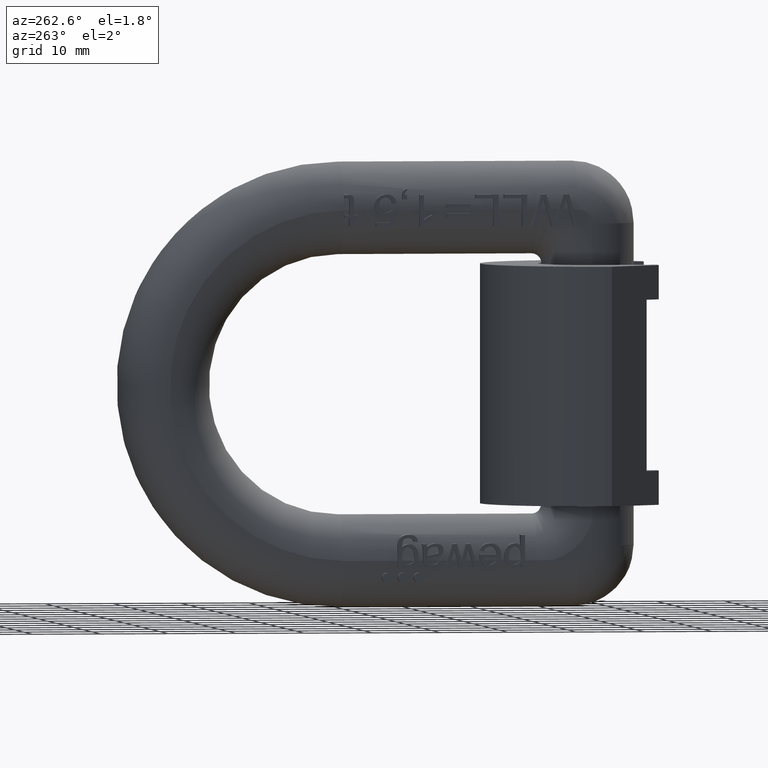
[diagram: clean part render]
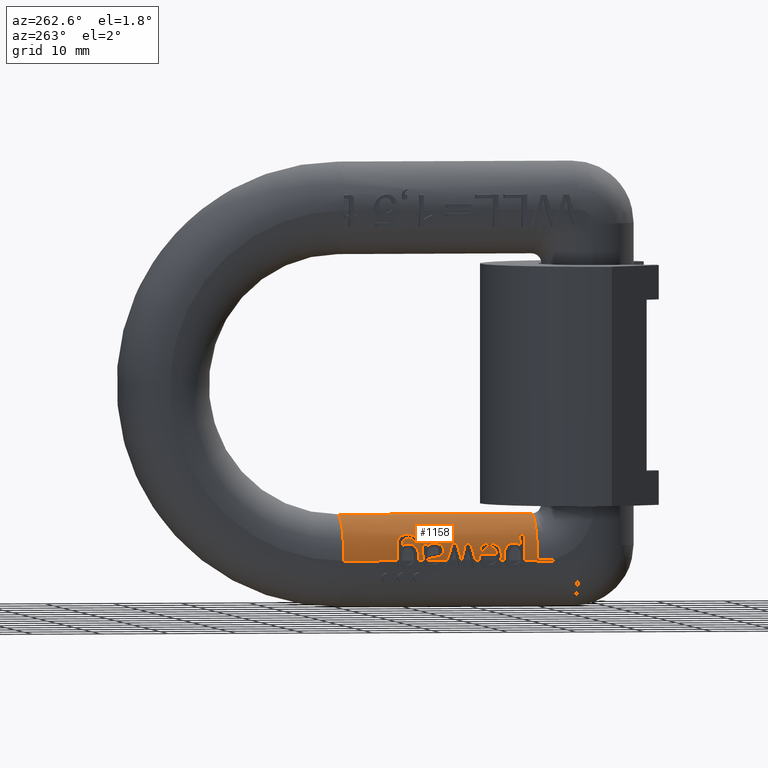
[diagram: same view with one face highlighted and labeled with its STEP entity id]
A machine part, auxiliary view. The second image highlights one B-rep face of the part: STEP entity #1158.
In plain terms, the highlighted cylindrical surface (partial cylindrical patch) has radius 6.9 mm, axis along (0, -1, 0).
Its self-contained STEP definition (entity closure, byte-faithful):
#266=ELLIPSE('',#9014,48.0158456161202,6.9);
#267=ELLIPSE('',#9015,51.9098161027808,6.9);
#268=ELLIPSE('',#9016,7.24041539934658,6.9);
#269=ELLIPSE('',#9017,7.14703583906104,6.9);
#270=ELLIPSE('',#9018,7.083587877245,6.9);
#271=ELLIPSE('',#9019,7.14294426054788,6.9);
#272=ELLIPSE('',#9020,7.22701863492407,6.9);
#273=ELLIPSE('',#9021,57.5025199382336,6.9);
#373=B_SPLINE_CURVE_WITH_KNOTS('',3,(#12194,#12195,#12196,#12197,#12198,
#12199,#12200,#12201),.UNSPECIFIED.,.F.,.F.,(4,2,2,4),(0.,0.249999999999999,
0.499999999999999,1.),.UNSPECIFIED.);
#374=B_SPLINE_CURVE_WITH_KNOTS('',3,(#12203,#12204,#12205,#12206,#12207,
#12208,#12209,#12210,#12211,#12212,#12213,#12214,#12215),.UNSPECIFIED.,
 .F.,.F.,(4,3,3,3,4),(0.,0.240774955562718,0.479091554389668,0.754813420386059,
1.),.UNSPECIFIED.);
#375=B_SPLINE_CURVE_WITH_KNOTS('',3,(#12217,#12218,#12219,#12220,#12221,
#12222,#12223,#12224,#12225,#12226),.UNSPECIFIED.,.F.,.F.,(4,3,3,4),(0.,
0.414423396238004,0.649284728910079,1.),.UNSPECIFIED.);
#376=B_SPLINE_CURVE_WITH_KNOTS('',3,(#12230,#12231,#12232,#12233,#12234,
#12235,#12236,#12237,#12238,#12239),.UNSPECIFIED.,.F.,.F.,(4,3,3,4),(0.,
0.265655216412921,0.672024980526453,1.),.UNSPECIFIED.);
#377=B_SPLINE_CURVE_WITH_KNOTS('',3,(#12241,#12242,#12243,#12244,#12245,
#12246,#12247,#12248,#12249,#12250,#12251,#12252,#12253,#12254,#12255,#12256,
#12257,#12258,#12259),.UNSPECIFIED.,.F.,.F.,(4,3,3,3,3,3,4),(0.,0.204909507472802,
0.339278695809492,0.474389882199312,0.678484330733748,0.856270146803092,
1.),.UNSPECIFIED.);
#378=B_SPLINE_CURVE_WITH_KNOTS('',3,(#12261,#12262,#12263,#12264,#12265,
#12266,#12267,#12268,#12269,#12270),.UNSPECIFIED.,.F.,.F.,(4,3,3,4),(0.,
0.350423326157689,0.673957232872882,1.),.UNSPECIFIED.);
#379=B_SPLINE_CURVE_WITH_KNOTS('',3,(#12272,#12273,#12274,#12275,#12276,
#12277,#12278,#12279,#12280,#12281,#12282,#12283,#12284,#12285,#12286,#12287,
#12288,#12289,#12290,#12291,#12292,#12293,#12294,#12295,#12296,#12297,#12298,
#12299),.UNSPECIFIED.,.F.,.F.,(4,3,3,3,3,3,3,3,3,4),(0.,0.161555110936717,
0.32659108141942,0.490029057805901,0.585040143930218,0.680259675914433,
0.774914289945667,0.860988711071178,0.946998001945225,1.),.UNSPECIFIED.);
#380=B_SPLINE_CURVE_WITH_KNOTS('',3,(#12300,#12301,#12302,#12303,#12304,
#12305,#12306,#12307,#12308,#12309),.UNSPECIFIED.,.F.,.F.,(4,3,3,4),(0.,
0.380802208752943,0.689054274983316,1.),.UNSPECIFIED.);
#381=B_SPLINE_CURVE_WITH_KNOTS('',3,(#12311,#12312,#12313,#12314,#12315,
#12316,#12317,#12318,#12319,#12320),.UNSPECIFIED.,.F.,.F.,(4,3,3,4),(0.,
0.493933314909418,0.746039258606021,1.),.UNSPECIFIED.);
#382=B_SPLINE_CURVE_WITH_KNOTS('',3,(#12324,#12325,#12326,#12327,#12328,
#12329,#12330,#12331,#12332,#12333),.UNSPECIFIED.,.F.,.F.,(4,3,3,4),(0.,
0.493370917964007,0.745461342687031,1.),.UNSPECIFIED.);
#383=B_SPLINE_CURVE_WITH_KNOTS('',3,(#12335,#12336,#12337,#12338,#12339,
#12340,#12341,#12342,#12343,#12344),.UNSPECIFIED.,.F.,.F.,(4,3,3,4),(0.,
0.282583026587272,0.564671553526574,1.),.UNSPECIFIED.);
#384=B_SPLINE_CURVE_WITH_KNOTS('',3,(#12346,#12347,#12348,#12349,#12350,
#12351,#12352,#12353,#12354,#12355,#12356,#12357,#12358,#12359,#12360,#12361,
#12362,#12363,#12364,#12365,#12366,#12367,#12368,#12369,#12370),
 .UNSPECIFIED.,.F.,.F.,(4,3,3,3,3,3,3,3,4),(0.,0.109334912724333,0.217830452497316,
0.344744115261239,0.457062185518119,0.572257754798188,0.721654213663783,
0.937888591037232,1.),.UNSPECIFIED.);
#385=B_SPLINE_CURVE_WITH_KNOTS('',3,(#12372,#12373,#12374,#12375,#12376,
#12377,#12378,#12379,#12380,#12381),.UNSPECIFIED.,.F.,.F.,(4,3,3,4),(0.,
0.259528139793295,0.519063539176798,1.),.UNSPECIFIED.);
#386=B_SPLINE_CURVE_WITH_KNOTS('',3,(#12383,#12384,#12385,#12386,#12387,
#12388,#12389,#12390,#12391,#12392),.UNSPECIFIED.,.F.,.F.,(4,3,3,4),(0.,
0.26165614086771,0.523384175272637,1.),.UNSPECIFIED.);
#387=B_SPLINE_CURVE_WITH_KNOTS('',3,(#12394,#12395,#12396,#12397,#12398,
#12399,#12400,#12401,#12402,#12403),.UNSPECIFIED.,.F.,.F.,(4,3,3,4),(0.,
0.331270383050767,0.665203033046445,1.),.UNSPECIFIED.);
#388=B_SPLINE_CURVE_WITH_KNOTS('',3,(#12405,#12406,#12407,#12408,#12409,
#12410,#12411,#12412,#12413,#12414),.UNSPECIFIED.,.F.,.F.,(4,3,3,4),(0.,
0.336070513602499,0.667700301170696,1.),.UNSPECIFIED.);
#389=B_SPLINE_CURVE_WITH_KNOTS('',3,(#12416,#12417,#12418,#12419,#12420,
#12421,#12422),.UNSPECIFIED.,.F.,.F.,(4,3,4),(0.,0.498341515942701,1.),
 .UNSPECIFIED.);
#390=B_SPLINE_CURVE_WITH_KNOTS('',3,(#12423,#12424,#12425,#12426),
 .UNSPECIFIED.,.F.,.F.,(4,4),(0.,1.),.UNSPECIFIED.);
#391=B_SPLINE_CURVE_WITH_KNOTS('',3,(#12430,#12431,#12432,#12433),
 .UNSPECIFIED.,.F.,.F.,(4,4),(0.,1.),.UNSPECIFIED.);
#392=B_SPLINE_CURVE_WITH_KNOTS('',3,(#12449,#12450,#12451,#12452,#12453,
#12454,#12455),.UNSPECIFIED.,.F.,.F.,(4,3,4),(0.,0.814441252914078,1.),
 .UNSPECIFIED.);
#393=B_SPLINE_CURVE_WITH_KNOTS('',3,(#12459,#12460,#12461,#12462,#12463,
#12464,#12465,#12466,#12467,#12468),.UNSPECIFIED.,.F.,.F.,(4,3,3,4),(0.,
0.295914027655166,0.754996035532997,1.),.UNSPECIFIED.);
#394=B_SPLINE_CURVE_WITH_KNOTS('',3,(#12470,#12471,#12472,#12473,#12474,
#12475,#12476,#12477,#12478,#12479,#12480,#12481,#12482,#12483,#12484,#12485),
 .UNSPECIFIED.,.F.,.F.,(4,3,3,3,3,4),(0.,0.208494010149192,0.415658259112177,
0.65101251760599,0.899385049135536,1.),.UNSPECIFIED.);
#395=B_SPLINE_CURVE_WITH_KNOTS('',3,(#12487,#12488,#12489,#12490,#12491,
#12492,#12493,#12494,#12495,#12496),.UNSPECIFIED.,.F.,.F.,(4,3,3,4),(0.,
0.290391091340213,0.581357320391749,1.),.UNSPECIFIED.);
#396=B_SPLINE_CURVE_WITH_KNOTS('',3,(#12500,#12501,#12502,#12503,#12504,
#12505,#12506,#12507,#12508,#12509),.UNSPECIFIED.,.F.,.F.,(4,3,3,4),(0.,
0.265914615217039,0.758350119690938,1.),.UNSPECIFIED.);
#397=B_SPLINE_CURVE_WITH_KNOTS('',3,(#12511,#12512,#12513,#12514,#12515,
#12516,#12517,#12518,#12519,#12520,#12521,#12522,#12523,#12524,#12525,#12526),
 .UNSPECIFIED.,.F.,.F.,(4,3,3,3,3,4),(0.,0.207142719932074,0.414106459647107,
0.701317802841798,0.902711883125082,1.),.UNSPECIFIED.);
#398=B_SPLINE_CURVE_WITH_KNOTS('',3,(#12528,#12529,#12530,#12531,#12532,
#12533,#12534,#12535,#12536,#12537,#12538,#12539,#12540),.UNSPECIFIED.,
 .F.,.F.,(4,3,3,3,4),(0.,0.327583363499491,0.659416952884937,0.903455095412193,
1.),.UNSPECIFIED.);
#399=B_SPLINE_CURVE_WITH_KNOTS('',3,(#12541,#12542,#12543,#12544,#12545,
#12546,#12547,#12548,#12549,#12550,#12551,#12552,#12553,#12554,#12555,#12556),
 .UNSPECIFIED.,.F.,.F.,(4,3,3,3,3,4),(0.,0.19221115347812,0.382927396830199,
0.666963421150526,0.956716028113853,1.),.UNSPECIFIED.);
#400=B_SPLINE_CURVE_WITH_KNOTS('',3,(#12558,#12559,#12560,#12561,#12562,
#12563,#12564,#12565,#12566,#12567,#12568,#12569,#12570),.UNSPECIFIED.,
 .F.,.F.,(4,3,3,3,4),(0.,0.268648668352517,0.534872777494387,0.839503930025229,
1.),.UNSPECIFIED.);
#401=B_SPLINE_CURVE_WITH_KNOTS('',3,(#12572,#12573,#12574,#12575,#12576,
#12577,#12578,#12579,#12580,#12581),.UNSPECIFIED.,.F.,.F.,(4,3,3,4),(0.,
0.25865518262096,0.517282552273823,1.),.UNSPECIFIED.);
#1074=CYLINDRICAL_SURFACE('',#9023,6.9);
#1158=ADVANCED_FACE('',(#1864),#1074,.T.);
#1864=FACE_OUTER_BOUND('',#2323,.T.);
#2323=EDGE_LOOP('',(#3215,#3216,#3217,#3218,#3219,#3220,#3221,#3222,#3223,
#3224,#3225,#3226,#3227,#3228,#3229,#3230,#3231,#3232,#3233,#3234,#3235,
#3236,#3237,#3238,#3239,#3240,#3241,#3242,#3243,#3244,#3245,#3246,#3247,
#3248,#3249,#3250,#3251,#3252,#3253,#3254,#3255,#3256,#3257,#3258,#3259,
#3260,#3261,#3262,#3263,#3264,#3265,#3266,#3267,#3268,#3269));
#2812=CIRCLE('',#9011,6.9);
#2813=CIRCLE('',#9012,6.9);
#2814=CIRCLE('',#9013,6.9);
#2815=CIRCLE('',#9022,6.9);
#3215=ORIENTED_EDGE('',*,*,#6604,.F.);
#3216=ORIENTED_EDGE('',*,*,#6592,.F.);
#3217=ORIENTED_EDGE('',*,*,#6605,.F.);
#3218=ORIENTED_EDGE('',*,*,#6441,.F.);
#3219=ORIENTED_EDGE('',*,*,#6606,.T.);
#3220=ORIENTED_EDGE('',*,*,#6587,.F.);
#3221=ORIENTED_EDGE('',*,*,#6607,.F.);
#3222=ORIENTED_EDGE('',*,*,#6608,.F.);
#3223=ORIENTED_EDGE('',*,*,#6609,.F.);
#3224=ORIENTED_EDGE('',*,*,#6610,.F.);
#3225=ORIENTED_EDGE('',*,*,#6611,.F.);
#3226=ORIENTED_EDGE('',*,*,#6612,.F.);
#3227=ORIENTED_EDGE('',*,*,#6613,.F.);
#3228=ORIENTED_EDGE('',*,*,#6614,.F.);
#3229=ORIENTED_EDGE('',*,*,#6581,.F.);
#3230=ORIENTED_EDGE('',*,*,#6615,.F.);
#3231=ORIENTED_EDGE('',*,*,#6616,.F.);
#3232=ORIENTED_EDGE('',*,*,#6617,.F.);
#3233=ORIENTED_EDGE('',*,*,#6618,.F.);
#3234=ORIENTED_EDGE('',*,*,#6619,.F.);
#3235=ORIENTED_EDGE('',*,*,#6620,.F.);
#3236=ORIENTED_EDGE('',*,*,#6621,.F.);
#3237=ORIENTED_EDGE('',*,*,#6622,.F.);
#3238=ORIENTED_EDGE('',*,*,#6623,.F.);
#3239=ORIENTED_EDGE('',*,*,#6624,.F.);
#3240=ORIENTED_EDGE('',*,*,#6625,.F.);
#3241=ORIENTED_EDGE('',*,*,#6603,.F.);
#3242=ORIENTED_EDGE('',*,*,#6626,.F.);
#3243=ORIENTED_EDGE('',*,*,#6627,.F.);
#3244=ORIENTED_EDGE('',*,*,#6628,.F.);
#3245=ORIENTED_EDGE('',*,*,#6574,.F.);
#3246=ORIENTED_EDGE('',*,*,#6629,.F.);
#3247=ORIENTED_EDGE('',*,*,#6630,.F.);
#3248=ORIENTED_EDGE('',*,*,#6631,.F.);
#3249=ORIENTED_EDGE('',*,*,#6632,.F.);
#3250=ORIENTED_EDGE('',*,*,#6633,.F.);
#3251=ORIENTED_EDGE('',*,*,#6634,.F.);
#3252=ORIENTED_EDGE('',*,*,#6635,.F.);
#3253=ORIENTED_EDGE('',*,*,#6636,.F.);
#3254=ORIENTED_EDGE('',*,*,#6562,.F.);
#3255=ORIENTED_EDGE('',*,*,#6637,.F.);
#3256=ORIENTED_EDGE('',*,*,#6638,.F.);
#3257=ORIENTED_EDGE('',*,*,#6639,.F.);
#3258=ORIENTED_EDGE('',*,*,#6640,.F.);
#3259=ORIENTED_EDGE('',*,*,#6641,.F.);
#3260=ORIENTED_EDGE('',*,*,#6642,.F.);
#3261=ORIENTED_EDGE('',*,*,#6643,.F.);
#3262=ORIENTED_EDGE('',*,*,#6644,.F.);
#3263=ORIENTED_EDGE('',*,*,#6645,.F.);
#3264=ORIENTED_EDGE('',*,*,#6560,.F.);
#3265=ORIENTED_EDGE('',*,*,#6646,.F.);
#3266=ORIENTED_EDGE('',*,*,#6647,.F.);
#3267=ORIENTED_EDGE('',*,*,#6648,.F.);
#3268=ORIENTED_EDGE('',*,*,#6649,.F.);
#3269=ORIENTED_EDGE('',*,*,#6650,.F.);
#5557=VERTEX_POINT('',#11249);
#5561=VERTEX_POINT('',#11268);
#5656=VERTEX_POINT('',#11800);
#5661=VERTEX_POINT('',#11837);
#5662=VERTEX_POINT('',#11839);
#5663=VERTEX_POINT('',#11865);
#5664=VERTEX_POINT('',#11867);
#5675=VERTEX_POINT('',#11895);
#5676=VERTEX_POINT('',#11897);
#5682=VERTEX_POINT('',#11957);
#5683=VERTEX_POINT('',#11959);
#5688=VERTEX_POINT('',#11993);
#5689=VERTEX_POINT('',#11995);
#5692=VERTEX_POINT('',#12002);
#5700=VERTEX_POINT('',#12167);
#5701=VERTEX_POINT('',#12187);
#5702=VERTEX_POINT('',#12191);
#5703=VERTEX_POINT('',#12202);
#5704=VERTEX_POINT('',#12216);
#5705=VERTEX_POINT('',#12227);
#5706=VERTEX_POINT('',#12229);
#5707=VERTEX_POINT('',#12240);
#5708=VERTEX_POINT('',#12260);
#5709=VERTEX_POINT('',#12271);
#5710=VERTEX_POINT('',#12310);
#5711=VERTEX_POINT('',#12321);
#5712=VERTEX_POINT('',#12323);
#5713=VERTEX_POINT('',#12334);
#5714=VERTEX_POINT('',#12345);
#5715=VERTEX_POINT('',#12371);
#5716=VERTEX_POINT('',#12382);
#5717=VERTEX_POINT('',#12393);
#5718=VERTEX_POINT('',#12404);
#5719=VERTEX_POINT('',#12415);
#5720=VERTEX_POINT('',#12427);
#5721=VERTEX_POINT('',#12429);
#5722=VERTEX_POINT('',#12435);
#5723=VERTEX_POINT('',#12437);
#5724=VERTEX_POINT('',#12439);
#5725=VERTEX_POINT('',#12441);
#5726=VERTEX_POINT('',#12443);
#5727=VERTEX_POINT('',#12445);
#5728=VERTEX_POINT('',#12447);
#5729=VERTEX_POINT('',#12456);
#5730=VERTEX_POINT('',#12458);
#5731=VERTEX_POINT('',#12469);
#5732=VERTEX_POINT('',#12486);
#5733=VERTEX_POINT('',#12497);
#5734=VERTEX_POINT('',#12499);
#5735=VERTEX_POINT('',#12510);
#5736=VERTEX_POINT('',#12527);
#5737=VERTEX_POINT('',#12557);
#5738=VERTEX_POINT('',#12571);
#5739=VERTEX_POINT('',#12582);
#5740=VERTEX_POINT('',#12584);
#6441=EDGE_CURVE('',#5561,#5557,#7735,.T.);
#6560=EDGE_CURVE('',#5661,#5662,#7778,.T.);
#6562=EDGE_CURVE('',#5663,#5664,#7779,.T.);
#6574=EDGE_CURVE('',#5675,#5676,#7785,.T.);
#6581=EDGE_CURVE('',#5682,#5683,#7786,.T.);
#6587=EDGE_CURVE('',#5688,#5689,#7788,.T.);
#6592=EDGE_CURVE('',#5692,#5656,#7791,.T.);
#6603=EDGE_CURVE('',#5701,#5700,#7792,.T.);
#6604=EDGE_CURVE('',#5656,#5702,#2812,.T.);
#6605=EDGE_CURVE('',#5557,#5692,#2813,.T.);
#6606=EDGE_CURVE('',#5561,#5689,#2814,.T.);
#6607=EDGE_CURVE('',#5703,#5688,#373,.T.);
#6608=EDGE_CURVE('',#5704,#5703,#374,.T.);
#6609=EDGE_CURVE('',#5705,#5704,#375,.T.);
#6610=EDGE_CURVE('',#5706,#5705,#266,.T.);
#6611=EDGE_CURVE('',#5707,#5706,#376,.T.);
#6612=EDGE_CURVE('',#5708,#5707,#377,.T.);
#6613=EDGE_CURVE('',#5709,#5708,#378,.T.);
#6614=EDGE_CURVE('',#5683,#5709,#379,.T.);
#6615=EDGE_CURVE('',#5710,#5682,#380,.T.);
#6616=EDGE_CURVE('',#5711,#5710,#381,.T.);
#6617=EDGE_CURVE('',#5712,#5711,#7793,.T.);
#6618=EDGE_CURVE('',#5713,#5712,#382,.T.);
#6619=EDGE_CURVE('',#5714,#5713,#383,.T.);
#6620=EDGE_CURVE('',#5715,#5714,#384,.T.);
#6621=EDGE_CURVE('',#5716,#5715,#385,.T.);
#6622=EDGE_CURVE('',#5717,#5716,#386,.T.);
#6623=EDGE_CURVE('',#5718,#5717,#387,.T.);
#6624=EDGE_CURVE('',#5719,#5718,#388,.T.);
#6625=EDGE_CURVE('',#5700,#5719,#389,.T.);
#6626=EDGE_CURVE('',#5720,#5701,#390,.T.);
#6627=EDGE_CURVE('',#5721,#5720,#267,.T.);
#6628=EDGE_CURVE('',#5676,#5721,#391,.T.);
#6629=EDGE_CURVE('',#5722,#5675,#268,.T.);
#6630=EDGE_CURVE('',#5723,#5722,#7794,.T.);
#6631=EDGE_CURVE('',#5724,#5723,#269,.T.);
#6632=EDGE_CURVE('',#5725,#5724,#270,.T.);
#6633=EDGE_CURVE('',#5726,#5725,#7795,.T.);
#6634=EDGE_CURVE('',#5727,#5726,#271,.T.);
#6635=EDGE_CURVE('',#5728,#5727,#7796,.T.);
#6636=EDGE_CURVE('',#5664,#5728,#272,.T.);
#6637=EDGE_CURVE('',#5729,#5663,#392,.T.);
#6638=EDGE_CURVE('',#5730,#5729,#7797,.T.);
#6639=EDGE_CURVE('',#5731,#5730,#393,.T.);
#6640=EDGE_CURVE('',#5732,#5731,#394,.T.);
#6641=EDGE_CURVE('',#5733,#5732,#395,.T.);
#6642=EDGE_CURVE('',#5734,#5733,#273,.T.);
#6643=EDGE_CURVE('',#5735,#5734,#396,.T.);
#6644=EDGE_CURVE('',#5736,#5735,#397,.T.);
#6645=EDGE_CURVE('',#5662,#5736,#398,.T.);
#6646=EDGE_CURVE('',#5737,#5661,#399,.T.);
#6647=EDGE_CURVE('',#5738,#5737,#400,.T.);
#6648=EDGE_CURVE('',#5739,#5738,#401,.T.);
#6649=EDGE_CURVE('',#5740,#5739,#2815,.T.);
#6650=EDGE_CURVE('',#5702,#5740,#7798,.T.);
#7735=LINE('',#11269,#8273);
#7778=LINE('',#11838,#8316);
#7779=LINE('',#11866,#8317);
#7785=LINE('',#11896,#8323);
#7786=LINE('',#11958,#8324);
#7788=LINE('',#11994,#8326);
#7791=LINE('',#12003,#8329);
#7792=LINE('',#12188,#8330);
#7793=LINE('',#12322,#8331);
#7794=LINE('',#12436,#8332);
#7795=LINE('',#12442,#8333);
#7796=LINE('',#12446,#8334);
#7797=LINE('',#12457,#8335);
#7798=LINE('',#12585,#8336);
#8273=VECTOR('',#9528,1.);
#8316=VECTOR('',#9687,1.);
#8317=VECTOR('',#9688,1.);
#8323=VECTOR('',#9702,1.);
#8324=VECTOR('',#9703,1.);
#8326=VECTOR('',#9707,1.);
#8329=VECTOR('',#9714,1.);
#8330=VECTOR('',#9727,1.);
#8331=VECTOR('',#9738,1.);
#8332=VECTOR('',#9743,1.);
#8333=VECTOR('',#9748,1.);
#8334=VECTOR('',#9751,1.);
#8335=VECTOR('',#9754,1.);
#8336=VECTOR('',#9759,1.);
#9011=AXIS2_PLACEMENT_3D('',#12190,#9730,#9731);
#9012=AXIS2_PLACEMENT_3D('',#12192,#9732,#9733);
#9013=AXIS2_PLACEMENT_3D('',#12193,#9734,#9735);
#9014=AXIS2_PLACEMENT_3D('',#12228,#9736,#9737);
#9015=AXIS2_PLACEMENT_3D('',#12428,#9739,#9740);
#9016=AXIS2_PLACEMENT_3D('',#12434,#9741,#9742);
#9017=AXIS2_PLACEMENT_3D('',#12438,#9744,#9745);
#9018=AXIS2_PLACEMENT_3D('',#12440,#9746,#9747);
#9019=AXIS2_PLACEMENT_3D('',#12444,#9749,#9750);
#9020=AXIS2_PLACEMENT_3D('',#12448,#9752,#9753);
#9021=AXIS2_PLACEMENT_3D('',#12498,#9755,#9756);
#9022=AXIS2_PLACEMENT_3D('',#12583,#9757,#9758);
#9023=AXIS2_PLACEMENT_3D('',#12586,#9760,#9761);
#9528=DIRECTION('',(0.,-1.,0.));
#9687=DIRECTION('',(0.,1.,0.));
#9688=DIRECTION('',(0.,1.,0.));
#9702=DIRECTION('',(0.,1.,0.));
#9703=DIRECTION('',(0.,1.,0.));
#9707=DIRECTION('',(0.,1.,0.));
#9714=DIRECTION('',(0.,1.,0.));
#9727=DIRECTION('',(0.,1.,0.));
#9730=DIRECTION('',(0.,1.,0.));
#9731=DIRECTION('',(0.,0.,-1.));
#9732=DIRECTION('',(-2.51647163691136E-15,-1.,0.));
#9733=DIRECTION('',(1.,-2.51409199416929E-15,0.));
#9734=DIRECTION('',(0.,-1.,0.));
#9735=DIRECTION('',(0.,0.,-1.));
#9736=DIRECTION('',(0.,-0.143702561341198,0.989620924326067));
#9737=DIRECTION('',(0.,-0.989620924326067,-0.143702561341198));
#9738=DIRECTION('',(0.,1.,0.));
#9739=DIRECTION('',(0.,0.132922836527452,-0.991126389281153));
#9740=DIRECTION('',(0.,-0.991126389281153,-0.132922836527452));
#9741=DIRECTION('',(0.,-0.952983996004248,-0.303020631904454));
#9742=DIRECTION('',(0.,-0.303020631904454,0.952983996004248));
#9743=DIRECTION('',(0.,1.,0.));
#9744=DIRECTION('',(0.,0.96543520354118,-0.260643180926341));
#9745=DIRECTION('',(0.,-0.260643180926341,-0.96543520354118));
#9746=DIRECTION('',(0.,0.974082642803832,-0.226192407008506));
#9747=DIRECTION('',(0.,-0.226192407008506,-0.974082642803832));
#9748=DIRECTION('',(0.,1.,0.));
#9749=DIRECTION('',(0.,-0.9659882183472,-0.25858608240662));
#9750=DIRECTION('',(0.,-0.25858608240662,0.9659882183472));
#9751=DIRECTION('',(0.,1.,0.));
#9752=DIRECTION('',(0.,0.954750547709429,-0.297407786798775));
#9753=DIRECTION('',(0.,-0.297407786798775,-0.954750547709429));
#9754=DIRECTION('',(0.,1.,0.));
#9755=DIRECTION('',(0.,-0.119994741228935,0.99277452731091));
#9756=DIRECTION('',(0.,-0.99277452731091,-0.119994741228935));
#9757=DIRECTION('',(0.,-1.,0.));
#9758=DIRECTION('',(0.,0.,1.));
#9759=DIRECTION('',(0.,1.,0.));
#9760=DIRECTION('',(0.,-1.,0.));
#9761=DIRECTION('',(0.,0.,-1.));
#11249=CARTESIAN_POINT('',(-0.106524824154365,17.5,-19.));
#11268=CARTESIAN_POINT('',(-0.106524824154365,46.,-19.));
#11269=CARTESIAN_POINT('',(-0.106524824154366,17.5,-19.));
#11800=CARTESIAN_POINT('',(-7.,19.4166666666667,-25.6));
#11837=CARTESIAN_POINT('',(-7.,22.2948708375314,-25.6));
#11838=CARTESIAN_POINT('',(-7.,11.5,-25.6));
#11839=CARTESIAN_POINT('',(-7.,23.0281956695124,-25.6));
#11865=CARTESIAN_POINT('',(-7.,25.9759394405865,-25.6));
#11866=CARTESIAN_POINT('',(-7.,11.5,-25.6));
#11867=CARTESIAN_POINT('',(-7.,26.6722112079631,-25.6));
#11895=CARTESIAN_POINT('',(-7.,30.79493666081,-25.6));
#11896=CARTESIAN_POINT('',(-7.,11.5,-25.6));
#11897=CARTESIAN_POINT('',(-7.,31.4923752585942,-25.6));
#11957=CARTESIAN_POINT('',(-7.,34.3670618294338,-25.6));
#11958=CARTESIAN_POINT('',(-7.,11.5,-25.6));
#11959=CARTESIAN_POINT('',(-7.,35.1648900030806,-25.6));
#11993=CARTESIAN_POINT('',(-7.,38.0833333333333,-25.6));
#11994=CARTESIAN_POINT('',(-7.,11.5,-25.6));
#11995=CARTESIAN_POINT('',(-7.,46.,-25.6));
#12002=CARTESIAN_POINT('',(-7.,17.5,-25.6));
#12003=CARTESIAN_POINT('',(-7.,11.5,-25.6));
#12167=CARTESIAN_POINT('',(-7.,33.7782066267164,-25.6));
#12187=CARTESIAN_POINT('',(-7.,32.0857585780771,-25.6));
#12188=CARTESIAN_POINT('',(-7.,11.5,-25.6));
#12190=CARTESIAN_POINT('',(-0.106524824154366,19.4166666666667,-25.9));
#12191=CARTESIAN_POINT('',(-5.70831934502668,19.4166666666667,-21.8713652255479));
#12192=CARTESIAN_POINT('',(-0.106524824154366,17.5,-25.9));
#12193=CARTESIAN_POINT('',(-0.106524824154365,46.,-25.9));
#12194=CARTESIAN_POINT('',(-5.78898811554476,37.4018730613219,-21.9859725419971));
#12195=CARTESIAN_POINT('',(-5.89576882788177,37.6905672353468,-22.1409989143448));
#12196=CARTESIAN_POINT('',(-6.05521851230449,37.9005626327654,-22.3881444943984));
#12197=CARTESIAN_POINT('',(-6.36473360811713,38.0712517080074,-22.9751224805143));
#12198=CARTESIAN_POINT('',(-6.50380267549954,38.0827975606164,-23.2922845571232));
#12199=CARTESIAN_POINT('',(-6.84154963268326,38.0843744578818,-24.2535444792466));
#12200=CARTESIAN_POINT('',(-6.97022413933469,38.0833333333333,-24.9158028122143));
#12201=CARTESIAN_POINT('',(-7.,38.0833333333333,-25.6));
#12202=CARTESIAN_POINT('',(-5.78898811554476,37.4018730613219,-21.9859725419971));
#12203=CARTESIAN_POINT('',(-5.84405754846661,35.5336272532049,-22.067152724482));
#12204=CARTESIAN_POINT('',(-5.78649023632543,35.6536147328157,-21.9809780575782));
#12205=CARTESIAN_POINT('',(-5.73918513736239,35.7956309103889,-21.9142724368258));
#12206=CARTESIAN_POINT('',(-5.70781155911644,35.9447974350211,-21.8706592458892));
#12207=CARTESIAN_POINT('',(-5.67661238486089,36.0931347511733,-21.8272884982747));
#12208=CARTESIAN_POINT('',(-5.65982439637897,36.2516591453552,-21.8047658342711));
#12209=CARTESIAN_POINT('',(-5.65453956934793,36.4090737525636,-21.7976186931107));
#12210=CARTESIAN_POINT('',(-5.64842438024211,36.5912216422571,-21.7893485795374));
#12211=CARTESIAN_POINT('',(-5.65544027412746,36.7770602576439,-21.7986266397441));
#12212=CARTESIAN_POINT('',(-5.67993352545225,36.9547046576947,-21.8321854211018));
#12213=CARTESIAN_POINT('',(-5.701650930827,37.1122164309298,-21.8619409504499));
#12214=CARTESIAN_POINT('',(-5.73872010006978,37.2665437364846,-21.9129924324469));
#12215=CARTESIAN_POINT('',(-5.78898811554476,37.4018730613219,-21.9859725419971));
#12216=CARTESIAN_POINT('',(-5.84405754846661,35.5336272532049,-22.067152724482));
#12217=CARTESIAN_POINT('',(-6.31349770278283,35.1679952712522,-22.8861175066087));
#12218=CARTESIAN_POINT('',(-6.25052680258253,35.1649667668809,-22.7564314055271));
#12219=CARTESIAN_POINT('',(-6.18221401336356,35.1783332744992,-22.626567662603));
#12220=CARTESIAN_POINT('',(-6.11376461353274,35.2162093822063,-22.5054352100881));
#12221=CARTESIAN_POINT('',(-6.07472316595716,35.2378127575035,-22.4363449579274));
#12222=CARTESIAN_POINT('',(-6.03526176537446,35.2677094295294,-22.3693693297366));
#12223=CARTESIAN_POINT('',(-5.99744704434863,35.3063067792306,-22.3073637262281));
#12224=CARTESIAN_POINT('',(-5.941575027512,35.3633351457993,-22.2157491901637));
#12225=CARTESIAN_POINT('',(-5.88818073559014,35.4416613472345,-22.1332023768225));
#12226=CARTESIAN_POINT('',(-5.84405754846661,35.5336272532049,-22.067152724482));
#12227=CARTESIAN_POINT('',(-6.31349770278283,35.1679952712522,-22.8861175066087));
#12228=CARTESIAN_POINT('',(-0.106524824154366,14.4126158884284,-25.9));
#12229=CARTESIAN_POINT('',(-6.27281995764176,35.7352714691655,-22.8037434979108));
#12230=CARTESIAN_POINT('',(-6.06916275102896,35.932056788356,-22.4276882408118));
#12231=CARTESIAN_POINT('',(-6.08299852024053,35.8994576832783,-22.4514469606416));
#12232=CARTESIAN_POINT('',(-6.09924659948278,35.8707076723555,-22.4796882116803));
#12233=CARTESIAN_POINT('',(-6.1165937289381,35.8467994914292,-22.5104466725317));
#12234=CARTESIAN_POINT('',(-6.14299327943314,35.8104150722528,-22.5572561197367));
#12235=CARTESIAN_POINT('',(-6.17243705082095,35.7842314867483,-22.6108372289247));
#12236=CARTESIAN_POINT('',(-6.20164382891771,35.7660928450743,-22.6658812146471));
#12237=CARTESIAN_POINT('',(-6.22537314051198,35.7513559412381,-22.7106021997646));
#12238=CARTESIAN_POINT('',(-6.24932773250306,35.7415526198069,-22.7569579704694));
#12239=CARTESIAN_POINT('',(-6.27281995764124,35.7352714691655,-22.8037434979109));
#12240=CARTESIAN_POINT('',(-6.06916275102896,35.932056788356,-22.4276882408118));
#12241=CARTESIAN_POINT('',(-6.30768671169251,37.4480325806382,-22.8741792444785));
#12242=CARTESIAN_POINT('',(-6.25294200330311,37.4180659512623,-22.7619846279966));
#12243=CARTESIAN_POINT('',(-6.1956639839371,37.367238519837,-22.6529544270662));
#12244=CARTESIAN_POINT('',(-6.14510167778462,37.2926600106544,-22.5614989017823));
#12245=CARTESIAN_POINT('',(-6.11164162551648,37.2433070241074,-22.5009774009041));
#12246=CARTESIAN_POINT('',(-6.08018082425856,37.1830709197326,-22.4463186746651));
#12247=CARTESIAN_POINT('',(-6.05494097486315,37.1142418568314,-22.403380876048));
#12248=CARTESIAN_POINT('',(-6.02960394819664,37.0451477915366,-22.360277760355));
#12249=CARTESIAN_POINT('',(-6.01065209064686,36.9653789873386,-22.3290241430957));
#12250=CARTESIAN_POINT('',(-5.99803685036733,36.8836080644605,-22.3083310223535));
#12251=CARTESIAN_POINT('',(-5.97900843799573,36.7602675012962,-22.2771182015104));
#12252=CARTESIAN_POINT('',(-5.97281740261532,36.6290624239321,-22.2672853360741));
#12253=CARTESIAN_POINT('',(-5.97392691821591,36.5004359508584,-22.269078262121));
#12254=CARTESIAN_POINT('',(-5.97489268840715,36.3884739257804,-22.2706389022151));
#12255=CARTESIAN_POINT('',(-5.98277251130136,36.2746766383969,-22.2832312254394));
#12256=CARTESIAN_POINT('',(-6.0015339451158,36.1686784590152,-22.3140736951547));
#12257=CARTESIAN_POINT('',(-6.01667220075401,36.0831504789827,-22.3389599163083));
#12258=CARTESIAN_POINT('',(-6.03970355457671,36.0008798754025,-22.3771010429323));
#12259=CARTESIAN_POINT('',(-6.06916275102896,35.932056788356,-22.4276882408118));
#12260=CARTESIAN_POINT('',(-6.30768671169251,37.4480325806382,-22.8741792444785));
#12261=CARTESIAN_POINT('',(-6.61528498092361,37.4905479273768,-23.6095761916944));
#12262=CARTESIAN_POINT('',(-6.58426718225221,37.4911210078626,-23.5214320624677));
#12263=CARTESIAN_POINT('',(-6.5514457788008,37.4908310526414,-23.4338851138056));
#12264=CARTESIAN_POINT('',(-6.51687869520164,37.4890771363217,-23.3470873011501));
#12265=CARTESIAN_POINT('',(-6.48496600487388,37.4874579025726,-23.2669546596891));
#12266=CARTESIAN_POINT('',(-6.45153721142913,37.4846847814115,-23.1873940838759));
#12267=CARTESIAN_POINT('',(-6.41670645216098,37.4792782032608,-23.1086548365407));
#12268=CARTESIAN_POINT('',(-6.38165283698687,37.4738370324714,-23.0294117958152));
#12269=CARTESIAN_POINT('',(-6.34474440044832,37.4679490817971,-22.9501258208689));
#12270=CARTESIAN_POINT('',(-6.30768671169251,37.4480325806382,-22.8741792444785));
#12271=CARTESIAN_POINT('',(-6.61528498092361,37.4905479273768,-23.6095761916944));
#12272=CARTESIAN_POINT('',(-7.,35.1648900030806,-25.6));
#12273=CARTESIAN_POINT('',(-6.99020746651178,35.0894557452795,-25.3749847116343));
#12274=CARTESIAN_POINT('',(-6.96805926944952,35.0536007968911,-25.1346512635742));
#12275=CARTESIAN_POINT('',(-6.93362451193936,35.0514868800439,-24.8996451364388));
#12276=CARTESIAN_POINT('',(-6.89847788396172,35.0493292621493,-24.659780722686));
#12277=CARTESIAN_POINT('',(-6.84927208942135,35.0822245393755,-24.417308401224));
#12278=CARTESIAN_POINT('',(-6.79235046345722,35.1581180003045,-24.1942053110528));
#12279=CARTESIAN_POINT('',(-6.73609055224204,35.2331291986207,-23.9736957976251));
#12280=CARTESIAN_POINT('',(-6.67021800506991,35.350061977913,-23.7642390297338));
#12281=CARTESIAN_POINT('',(-6.60894697007034,35.504571549414,-23.5916442569869));
#12282=CARTESIAN_POINT('',(-6.57306482578467,35.5950569596598,-23.4905676138602));
#12283=CARTESIAN_POINT('',(-6.53887206936174,35.7035684925856,-23.4019808737405));
#12284=CARTESIAN_POINT('',(-6.51209073814324,35.823988538453,-23.3350974050573));
#12285=CARTESIAN_POINT('',(-6.48525887119713,35.9446358140495,-23.2680877288779));
#12286=CARTESIAN_POINT('',(-6.46543867058727,36.080001255263,-23.2213774841867));
#12287=CARTESIAN_POINT('',(-6.45432470711693,36.2177042774395,-23.1952936118942));
#12288=CARTESIAN_POINT('',(-6.44323322228684,36.3551287872108,-23.1692624957568));
#12289=CARTESIAN_POINT('',(-6.43929053963132,36.4978391345608,-23.1602566155057));
#12290=CARTESIAN_POINT('',(-6.44354098520046,36.6377345094964,-23.1701234140276));
#12291=CARTESIAN_POINT('',(-6.44739259360271,36.7645029136018,-23.1790643693867));
#12292=CARTESIAN_POINT('',(-6.45947419815699,36.8916518529509,-23.2069286078203));
#12293=CARTESIAN_POINT('',(-6.47902498807751,37.008123874624,-23.2540140475053));
#12294=CARTESIAN_POINT('',(-6.49857995830457,37.1246208000863,-23.3011095548945));
#12295=CARTESIAN_POINT('',(-6.52584267233762,37.2330548414559,-23.3682832794566));
#12296=CARTESIAN_POINT('',(-6.55606426146939,37.3276102656042,-23.4477681499258));
#12297=CARTESIAN_POINT('',(-6.57485002033152,37.3863859768817,-23.4971759955329));
#12298=CARTESIAN_POINT('',(-6.59492240210345,37.4406917035063,-23.5517112929655));
#12299=CARTESIAN_POINT('',(-6.61528498092361,37.4905479273768,-23.6095761916944));
#12300=CARTESIAN_POINT('',(-6.60214321858777,34.4087926509186,-23.572567579091));
#12301=CARTESIAN_POINT('',(-6.68960880654773,34.3645893704353,-23.8166748094142));
#12302=CARTESIAN_POINT('',(-6.76531304055498,34.3744816182801,-24.0725080678822));
#12303=CARTESIAN_POINT('',(-6.82521515712964,34.3721955412234,-24.3286311032779));
#12304=CARTESIAN_POINT('',(-6.87376515045284,34.3703427014209,-24.5362159495142));
#12305=CARTESIAN_POINT('',(-6.91272881443595,34.3711362009501,-24.7462932582632));
#12306=CARTESIAN_POINT('',(-6.941850299816,34.3711362009501,-24.9574897126445));
#12307=CARTESIAN_POINT('',(-6.9712251661894,34.3711362009501,-25.1705237507446));
#12308=CARTESIAN_POINT('',(-6.99065644780624,34.3750395055051,-25.3853015163375));
#12309=CARTESIAN_POINT('',(-6.99999999999936,34.3670618294326,-25.5999999999852));
#12310=CARTESIAN_POINT('',(-6.60214321858777,34.4087926509186,-23.572567579091));
#12311=CARTESIAN_POINT('',(-6.44205076040377,34.5557742782152,-23.1666666666667));
#12312=CARTESIAN_POINT('',(-6.46877552154691,34.520758162144,-23.2286113315554));
#12313=CARTESIAN_POINT('',(-6.49565384504916,34.4904208970459,-23.2934307757281));
#12314=CARTESIAN_POINT('',(-6.52212629591034,34.4658299191984,-23.3603036095619));
#12315=CARTESIAN_POINT('',(-6.535666757864,34.453251816714,-23.3945085672747));
#12316=CARTESIAN_POINT('',(-6.54913164647149,34.4421435289254,-23.4293243087012));
#12317=CARTESIAN_POINT('',(-6.56243695861944,34.4326307290127,-23.4645947950974));
#12318=CARTESIAN_POINT('',(-6.57583931980761,34.4230485426707,-23.500122544669));
#12319=CARTESIAN_POINT('',(-6.58910424309983,34.4150684849668,-23.5361771738259));
#12320=CARTESIAN_POINT('',(-6.60214321858777,34.4087926509186,-23.572567579091));
#12321=CARTESIAN_POINT('',(-6.44205076040377,34.5557742782152,-23.1666666666667));
#12322=CARTESIAN_POINT('',(-6.44205076040377,11.5,-23.1666666666667));
#12323=CARTESIAN_POINT('',(-6.44205076040377,33.9471974577558,-23.1666666666667));
#12324=CARTESIAN_POINT('',(-6.60598301543417,33.8305839352726,-23.5833120150081));
#12325=CARTESIAN_POINT('',(-6.58047860376794,33.8382476244617,-23.5117594976248));
#12326=CARTESIAN_POINT('',(-6.5538523760225,33.8506865431237,-23.4408426410479));
#12327=CARTESIAN_POINT('',(-6.52671119684072,33.8691660648753,-23.3719163502818));
#12328=CARTESIAN_POINT('',(-6.5128162010856,33.8786267030656,-23.33662936031));
#12329=CARTESIAN_POINT('',(-6.49875812458646,33.8896964321849,-23.3017860128727));
#12330=CARTESIAN_POINT('',(-6.48467631018567,33.9025516327283,-23.2676657466744));
#12331=CARTESIAN_POINT('',(-6.47046132745283,33.9155284018116,-23.2332228133247));
#12332=CARTESIAN_POINT('',(-6.45618612213068,33.9303603154555,-23.1994306730712));
#12333=CARTESIAN_POINT('',(-6.44205076040377,33.9471974577558,-23.1666666666667));
#12334=CARTESIAN_POINT('',(-6.60598301543417,33.8305839352726,-23.5833120150081));
#12335=CARTESIAN_POINT('',(-6.45687532841591,33.2074304245027,-23.201287626844));
#12336=CARTESIAN_POINT('',(-6.46720495030756,33.2728509834226,-23.2255942999971));
#12337=CARTESIAN_POINT('',(-6.47937419510976,33.3363427632235,-23.2546253633666));
#12338=CARTESIAN_POINT('',(-6.49258066488391,33.3976721358614,-23.2869001551636));
#12339=CARTESIAN_POINT('',(-6.50577266306687,33.4589343040438,-23.3191395803863));
#12340=CARTESIAN_POINT('',(-6.52004561571202,33.5182721951136,-23.3547280123944));
#12341=CARTESIAN_POINT('',(-6.53484391910147,33.5757876536715,-23.3926680288525));
#12342=CARTESIAN_POINT('',(-6.55766777205162,33.6644954152261,-23.4511840177315));
#12343=CARTESIAN_POINT('',(-6.58179574990826,33.7491930062054,-23.515454745464));
#12344=CARTESIAN_POINT('',(-6.60598301543417,33.8305839352726,-23.5833120150081));
#12345=CARTESIAN_POINT('',(-6.45687532841591,33.2074304245027,-23.201287626844));
#12346=CARTESIAN_POINT('',(-6.86525568240059,31.5031723823778,-24.510914982519));
#12347=CARTESIAN_POINT('',(-6.84664516811869,31.4522548944988,-24.4203636803438));
#12348=CARTESIAN_POINT('',(-6.82397817174057,31.4174468161921,-24.3199118093625));
#12349=CARTESIAN_POINT('',(-6.79858974605161,31.4007042671004,-24.2188494769616));
#12350=CARTESIAN_POINT('',(-6.77330661578255,31.3840311557029,-24.1182062883412));
#12351=CARTESIAN_POINT('',(-6.74479647880876,31.3836929302277,-24.0147371910644));
#12352=CARTESIAN_POINT('',(-6.71480650743345,31.3971041565576,-23.9149022204339));
#12353=CARTESIAN_POINT('',(-6.67998016474959,31.412678161552,-23.7989672348517));
#12354=CARTESIAN_POINT('',(-6.64200169039817,31.4503528494821,-23.6843847894008));
#12355=CARTESIAN_POINT('',(-6.60614674310118,31.5094097204778,-23.5837714036075));
#12356=CARTESIAN_POINT('',(-6.57426013465161,31.5619303198277,-23.4942936640086));
#12357=CARTESIAN_POINT('',(-6.54322993833645,31.6318791969343,-23.4132052391943));
#12358=CARTESIAN_POINT('',(-6.51622400015676,31.7122565925548,-23.3454439772925));
#12359=CARTESIAN_POINT('',(-6.48859718520111,31.7944818950291,-23.2761248582429));
#12360=CARTESIAN_POINT('',(-6.46533693595018,31.8918745333273,-23.2209486048542));
#12361=CARTESIAN_POINT('',(-6.44858739977107,31.9944490456722,-23.1818678680091));
#12362=CARTESIAN_POINT('',(-6.42688267118937,32.1273692606585,-23.1312254635315));
#12363=CARTESIAN_POINT('',(-6.41514902551666,32.2721472870216,-23.1051156926656));
#12364=CARTESIAN_POINT('',(-6.41074078503148,32.4156252523268,-23.0952074731592));
#12365=CARTESIAN_POINT('',(-6.40438280769192,32.6225626132092,-23.0809169109021));
#12366=CARTESIAN_POINT('',(-6.41160096940621,32.8356666843742,-23.096586695977));
#12367=CARTESIAN_POINT('',(-6.43385021891306,33.0355575665514,-23.147736686136));
#12368=CARTESIAN_POINT('',(-6.44033608112759,33.0938276092934,-23.1626473818133));
#12369=CARTESIAN_POINT('',(-6.44806400987051,33.1512854584398,-23.1805536791568));
#12370=CARTESIAN_POINT('',(-6.45687532841591,33.2074304245027,-23.201287626844));
#12371=CARTESIAN_POINT('',(-6.86525568240059,31.5031723823778,-24.510914982519));
#12372=CARTESIAN_POINT('',(-6.92468228697106,31.8044239821262,-24.8404110173105));
#12373=CARTESIAN_POINT('',(-6.9213067814151,31.7717534602757,-24.8186905872446));
#12374=CARTESIAN_POINT('',(-6.91749755497394,31.7404268263884,-24.7948631365564));
#12375=CARTESIAN_POINT('',(-6.91323331615292,31.710871671031,-24.7691951959092));
#12376=CARTESIAN_POINT('',(-6.90896894904589,31.6813156265318,-24.7435264830638));
#12377=CARTESIAN_POINT('',(-6.90423132775572,31.6534102971636,-24.7159123995851));
#12378=CARTESIAN_POINT('',(-6.89902373810087,31.6274589416691,-24.6867570300902));
#12379=CARTESIAN_POINT('',(-6.88941548381307,31.5795774380885,-24.6329639660186));
#12380=CARTESIAN_POINT('',(-6.87809328201569,31.5379900304861,-24.5733775960901));
#12381=CARTESIAN_POINT('',(-6.86525568240059,31.5031723823778,-24.510914982519));
#12382=CARTESIAN_POINT('',(-6.92468228697106,31.8044239821262,-24.8404110173105));
#12383=CARTESIAN_POINT('',(-6.95133460547446,32.2235038285504,-25.0290355589665));
#12384=CARTESIAN_POINT('',(-6.94996729362459,32.1846286339391,-25.0182900117511));
#12385=CARTESIAN_POINT('',(-6.94840037370298,32.1461068426499,-25.0061727880092));
#12386=CARTESIAN_POINT('',(-6.94659661257766,32.1081529670046,-24.9925762129986));
#12387=CARTESIAN_POINT('',(-6.94479255555084,32.0701928651417,-24.9789774075114));
#12388=CARTESIAN_POINT('',(-6.94274849972977,32.032741869073,-24.9638754769488));
#12389=CARTESIAN_POINT('',(-6.94042444475288,31.9960555458659,-24.9472062260995));
#12390=CARTESIAN_POINT('',(-6.93620303032789,31.9294184931599,-24.9169281919356));
#12391=CARTESIAN_POINT('',(-6.93102934995763,31.8649777404618,-24.881252584724));
#12392=CARTESIAN_POINT('',(-6.9246822869713,31.8044239821262,-24.8404110173105));
#12393=CARTESIAN_POINT('',(-6.95133460547446,32.2235038285504,-25.0290355589665));
#12394=CARTESIAN_POINT('',(-6.96172437942744,32.7421910587623,-25.1149910463034));
#12395=CARTESIAN_POINT('',(-6.96093833770979,32.6844940334502,-25.1081268279936));
#12396=CARTESIAN_POINT('',(-6.96008634494079,32.6268511505061,-25.1007747846609));
#12397=CARTESIAN_POINT('',(-6.95913247111073,32.5693166561023,-25.092678232131));
#12398=CARTESIAN_POINT('',(-6.95817099407803,32.5113235618231,-25.0845171430475));
#12399=CARTESIAN_POINT('',(-6.9571094249368,32.4534202775487,-25.0756234421502));
#12400=CARTESIAN_POINT('',(-6.95586362124016,32.3957605412713,-25.0653994711628));
#12401=CARTESIAN_POINT('',(-6.95461502295439,32.3379714625678,-25.0551525657449));
#12402=CARTESIAN_POINT('',(-6.95320401721941,32.280308766939,-25.0437270517466));
#12403=CARTESIAN_POINT('',(-6.95133460547446,32.2235038285504,-25.0290355589665));
#12404=CARTESIAN_POINT('',(-6.96172437942744,32.7421910587623,-25.1149910463034));
#12405=CARTESIAN_POINT('',(-6.98142289671242,33.7819949675712,-25.3119723714505));
#12406=CARTESIAN_POINT('',(-6.97812527884187,33.6698250124873,-25.2734184232318));
#12407=CARTESIAN_POINT('',(-6.97548097953558,33.5539243431659,-25.2457656775616));
#12408=CARTESIAN_POINT('',(-6.973111281315,33.4377427317787,-25.2217740595213));
#12409=CARTESIAN_POINT('',(-6.97077072049897,33.3229896696403,-25.1980774383184));
#12410=CARTESIAN_POINT('',(-6.96872120222136,33.2073646412304,-25.1784974033672));
#12411=CARTESIAN_POINT('',(-6.96685069197453,33.0914761377118,-25.1611299252795));
#12412=CARTESIAN_POINT('',(-6.96497611819412,32.9753358757091,-25.1437247177378));
#12413=CARTESIAN_POINT('',(-6.96328480951335,32.8588396532634,-25.1286177184332));
#12414=CARTESIAN_POINT('',(-6.96172437942744,32.7421910587623,-25.1149910463034));
#12415=CARTESIAN_POINT('',(-6.98142289671242,33.7819949675712,-25.3119723714505));
#12416=CARTESIAN_POINT('',(-7.,33.7782066267164,-25.6));
#12417=CARTESIAN_POINT('',(-6.99792875820263,33.7836588451405,-25.5524064869555));
#12418=CARTESIAN_POINT('',(-6.99534185659739,33.7859514723637,-25.5044005258558));
#12419=CARTESIAN_POINT('',(-6.99226031094931,33.7856216358165,-25.4565512364513));
#12420=CARTESIAN_POINT('',(-6.98915346189266,33.7852890908919,-25.4083090435307));
#12421=CARTESIAN_POINT('',(-6.9855408353057,33.783479436215,-25.3601170618075));
#12422=CARTESIAN_POINT('',(-6.98142289671242,33.7819949675712,-25.3119723714505));
#12423=CARTESIAN_POINT('',(-6.99529900556002,32.0583013383658,-25.5065660441716));
#12424=CARTESIAN_POINT('',(-6.99709124339081,32.06656190057,-25.5379469697697));
#12425=CARTESIAN_POINT('',(-6.99865696391354,32.0756575931949,-25.5691393801971));
#12426=CARTESIAN_POINT('',(-7.00000000000246,32.0857585780771,-25.599999999994));
#12427=CARTESIAN_POINT('',(-6.99529900556002,32.0583013383658,-25.5065660441716));
#12428=CARTESIAN_POINT('',(-0.106524824154366,29.1246987592461,-25.9));
#12429=CARTESIAN_POINT('',(-6.9992378287396,31.4885956920674,-25.5829709218044));
#12430=CARTESIAN_POINT('',(-7.,31.4923752585942,-25.6));
#12431=CARTESIAN_POINT('',(-6.99975318219634,31.4910920317984,-25.5943285586585));
#12432=CARTESIAN_POINT('',(-6.9994991314268,31.4898323339259,-25.5886520550318));
#12433=CARTESIAN_POINT('',(-6.9992378287396,31.4885956920674,-25.5829709218044));
#12434=CARTESIAN_POINT('',(-0.106524824154366,30.8903277586169,-25.9));
#12435=CARTESIAN_POINT('',(-6.44205076040377,30.0212088674866,-23.1666666666667));
#12436=CARTESIAN_POINT('',(-6.44205076040377,11.5,-23.1666666666667));
#12437=CARTESIAN_POINT('',(-6.44205076040377,29.4150614954122,-23.1666666666667));
#12438=CARTESIAN_POINT('',(-0.106524824154366,28.6771303614336,-25.9));
#12439=CARTESIAN_POINT('',(-6.97004289168984,28.868435608772,-25.1913959239362));
#12440=CARTESIAN_POINT('',(-0.106524824154366,28.7038901641273,-25.9));
#12441=CARTESIAN_POINT('',(-7.,28.7735533724842,-25.6));
#12442=CARTESIAN_POINT('',(-7.,11.5,-25.6));
#12443=CARTESIAN_POINT('',(-7.,28.6901597390996,-25.6));
#12444=CARTESIAN_POINT('',(-0.106524824154366,28.770466955325,-25.9));
#12445=CARTESIAN_POINT('',(-6.44205076040377,28.0387789852715,-23.1666666666667));
#12446=CARTESIAN_POINT('',(-6.44205076040377,11.5,-23.1666666666667));
#12447=CARTESIAN_POINT('',(-6.44205076040377,27.430202164812,-23.1666666666667));
#12448=CARTESIAN_POINT('',(-0.106524824154366,26.5787602680776,-25.9));
#12449=CARTESIAN_POINT('',(-6.90318398468212,26.0794288627145,-24.7102839600921));
#12450=CARTESIAN_POINT('',(-6.9453727991307,26.0880336711536,-24.9513019699156));
#12451=CARTESIAN_POINT('',(-6.97500269565237,26.0777200504936,-25.1994049296757));
#12452=CARTESIAN_POINT('',(-6.99098953802665,26.0218461206906,-25.4372413118618));
#12453=CARTESIAN_POINT('',(-6.99467550954166,26.008963669681,-25.492077539645));
#12454=CARTESIAN_POINT('',(-6.99767079375545,25.9937333747364,-25.5464789152459));
#12455=CARTESIAN_POINT('',(-7.,25.9759394405865,-25.6));
#12456=CARTESIAN_POINT('',(-6.90318398468212,26.0794288627145,-24.7102839600921));
#12457=CARTESIAN_POINT('',(-6.90318398468212,11.5,-24.7102839600921));
#12458=CARTESIAN_POINT('',(-6.90318398468212,23.5139313680831,-24.7102839600921));
#12459=CARTESIAN_POINT('',(-6.69741210099697,23.834618554912,-23.857892044001));
#12460=CARTESIAN_POINT('',(-6.71775662401559,23.770641769877,-23.9235538311377));
#12461=CARTESIAN_POINT('',(-6.74006120164812,23.7164494609599,-23.9991702789044));
#12462=CARTESIAN_POINT('',(-6.76206855371465,23.6733229169664,-24.0796325470085));
#12463=CARTESIAN_POINT('',(-6.79603236370384,23.6067659890245,-24.2038094664728));
#12464=CARTESIAN_POINT('',(-6.82987151225812,23.5645517673166,-24.3421136603057));
#12465=CARTESIAN_POINT('',(-6.85922637672937,23.5400010742145,-24.4818950173379));
#12466=CARTESIAN_POINT('',(-6.87502794648212,23.5267855647404,-24.5571385895043));
#12467=CARTESIAN_POINT('',(-6.88975545761444,23.5184491913744,-24.6335689134377));
#12468=CARTESIAN_POINT('',(-6.90318398468212,23.5139313680831,-24.7102839600921));
#12469=CARTESIAN_POINT('',(-6.69741210099697,23.834618554912,-23.857892044001));
#12470=CARTESIAN_POINT('',(-6.65528097169355,25.1015758877248,-23.7265711605696));
#12471=CARTESIAN_POINT('',(-6.63689371782686,25.0249828979934,-23.671168545305));
#12472=CARTESIAN_POINT('',(-6.62186331480495,24.936808614272,-23.6281765207461));
#12473=CARTESIAN_POINT('',(-6.61233730493708,24.8448496108163,-23.6012168512685));
#12474=CARTESIAN_POINT('',(-6.60284152759521,24.7531824559942,-23.5743427432085));
#12475=CARTESIAN_POINT('',(-6.59846068710663,24.6559070682063,-23.5623154600436));
#12476=CARTESIAN_POINT('',(-6.59828888715818,24.5599122886203,-23.5618384678786));
#12477=CARTESIAN_POINT('',(-6.59809410235975,24.4510745156124,-23.5612976596679));
#12478=CARTESIAN_POINT('',(-6.60324636875366,24.3404102700541,-23.5754008509051));
#12479=CARTESIAN_POINT('',(-6.61452376372894,24.2369986690868,-23.6074141668203));
#12480=CARTESIAN_POINT('',(-6.6263784147577,24.1282937381624,-23.6410661484419));
#12481=CARTESIAN_POINT('',(-6.64543601988937,24.0250969624931,-23.6959212970967));
#12482=CARTESIAN_POINT('',(-6.66800688697284,23.9369652640636,-23.7652978804399));
#12483=CARTESIAN_POINT('',(-6.67728654071071,23.9007313151536,-23.7938209614788));
#12484=CARTESIAN_POINT('',(-6.68719292448978,23.8665608896481,-23.8249097326481));
#12485=CARTESIAN_POINT('',(-6.69741210099697,23.834618554912,-23.857892044001));
#12486=CARTESIAN_POINT('',(-6.65528097169355,25.1015758877248,-23.7265711605696));
#12487=CARTESIAN_POINT('',(-6.80767471195026,25.4611342487148,-24.2554361729343));
#12488=CARTESIAN_POINT('',(-6.79316454726727,25.439500372881,-24.1963112020228));
#12489=CARTESIAN_POINT('',(-6.77807869660194,25.4149426615365,-24.1382545339382));
#12490=CARTESIAN_POINT('',(-6.76276639415006,25.3867261506171,-24.0821858835785));
#12491=CARTESIAN_POINT('',(-6.74743667717466,25.3584775493512,-24.0260534669215));
#12492=CARTESIAN_POINT('',(-6.73180239484906,25.3264141933723,-23.971648607484));
#12493=CARTESIAN_POINT('',(-6.71650914750396,25.289782920841,-23.9205790631923));
#12494=CARTESIAN_POINT('',(-6.69466677629168,25.2374648071958,-23.8476396855121));
#12495=CARTESIAN_POINT('',(-6.67312983399446,25.1745383093614,-23.7803515487742));
#12496=CARTESIAN_POINT('',(-6.65528097169355,25.1015758877248,-23.7265711605696));
#12497=CARTESIAN_POINT('',(-6.80767471195026,25.4611342487148,-24.2554361729343));
#12498=CARTESIAN_POINT('',(-0.106524824154366,11.8548623460747,-25.9));
#12499=CARTESIAN_POINT('',(-6.78938208102942,26.0636374482115,-24.1826127739405));
#12500=CARTESIAN_POINT('',(-6.52862426562263,25.5352324244593,-23.3767800801569));
#12501=CARTESIAN_POINT('',(-6.54924667560902,25.6056628611576,-23.4292682388837));
#12502=CARTESIAN_POINT('',(-6.57177789248743,25.6710148572914,-23.4885233479958));
#12503=CARTESIAN_POINT('',(-6.5951378171266,25.7295285844112,-23.5531081346957));
#12504=CARTESIAN_POINT('',(-6.63799570473194,25.8368823014718,-23.6716002776353));
#12505=CARTESIAN_POINT('',(-6.68436669334388,25.9226720015702,-23.8106301956549));
#12506=CARTESIAN_POINT('',(-6.72749248568229,25.9853790319814,-23.9576336017628));
#12507=CARTESIAN_POINT('',(-6.7488649506782,26.0164556508628,-24.03048617979));
#12508=CARTESIAN_POINT('',(-6.7696616601666,26.0423670412297,-24.1058748340793));
#12509=CARTESIAN_POINT('',(-6.78938208102942,26.0636374482115,-24.1826127739405));
#12510=CARTESIAN_POINT('',(-6.52862426562263,25.5352324244593,-23.3767800801569));
#12511=CARTESIAN_POINT('',(-6.59310564232342,23.3535877746687,-23.5474972286177));
#12512=CARTESIAN_POINT('',(-6.5516948574783,23.4638691135678,-23.4333148327841));
#12513=CARTESIAN_POINT('',(-6.51267384384823,23.5956215226678,-23.3353637477503));
#12514=CARTESIAN_POINT('',(-6.48281626989254,23.7398785067311,-23.2631633727123));
#12515=CARTESIAN_POINT('',(-6.45295535135361,23.8841516501612,-23.1909549099386));
#12516=CARTESIAN_POINT('',(-6.43168994420524,24.0439915781946,-23.1426285545048));
#12517=CARTESIAN_POINT('',(-6.42020141664403,24.205575587697,-23.1165690442463));
#12518=CARTESIAN_POINT('',(-6.4043039487967,24.4291705246479,-23.0805087028105));
#12519=CARTESIAN_POINT('',(-6.4040656782537,24.6629901822093,-23.0799855427538));
#12520=CARTESIAN_POINT('',(-6.41970764402974,24.8866985312063,-23.1154492852831));
#12521=CARTESIAN_POINT('',(-6.43070780329283,25.044020667227,-23.1403890416713));
#12522=CARTESIAN_POINT('',(-6.45114087902981,25.1998938512071,-23.1867659011386));
#12523=CARTESIAN_POINT('',(-6.4802921276512,25.3402544241156,-23.2570678478488));
#12524=CARTESIAN_POINT('',(-6.49452364484283,25.4087778665354,-23.2913889630849));
#12525=CARTESIAN_POINT('',(-6.51085945148882,25.4742738168905,-23.331565074509));
#12526=CARTESIAN_POINT('',(-6.52862426562263,25.5352324244593,-23.3767800801569));
#12527=CARTESIAN_POINT('',(-6.59310564232342,23.3535877746687,-23.5474972286177));
#12528=CARTESIAN_POINT('',(-7.,23.0281956695124,-25.6));
#12529=CARTESIAN_POINT('',(-6.99011540626178,22.9493378507556,-25.3728693281408));
#12530=CARTESIAN_POINT('',(-6.96750311425185,22.9167200652817,-25.1287286060193));
#12531=CARTESIAN_POINT('',(-6.93231197425368,22.9120357820211,-24.8907280933568));
#12532=CARTESIAN_POINT('',(-6.89662637625894,22.9072856815885,-24.6493835214602));
#12533=CARTESIAN_POINT('',(-6.84679063619979,22.929556083344,-24.4053492114227));
#12534=CARTESIAN_POINT('',(-6.78817208123271,22.9957303299914,-24.1779111718679));
#12535=CARTESIAN_POINT('',(-6.74498844228952,23.0444801631486,-24.0103600920503));
#12536=CARTESIAN_POINT('',(-6.69623013166884,23.1190480071312,-23.8486791320499));
#12537=CARTESIAN_POINT('',(-6.64895953753216,23.2199509014483,-23.7076159047308));
#12538=CARTESIAN_POINT('',(-6.63003439556829,23.260348142786,-23.6511401685643));
#12539=CARTESIAN_POINT('',(-6.61123988390903,23.3051049682975,-23.5974989650884));
#12540=CARTESIAN_POINT('',(-6.59310564232342,23.3535877746687,-23.5474972286177));
#12541=CARTESIAN_POINT('',(-6.50243746220182,21.6626916986616,-23.3111196384412));
#12542=CARTESIAN_POINT('',(-6.53684974181789,21.800820441978,-23.3961362878656));
#12543=CARTESIAN_POINT('',(-6.5794733520279,21.9239707746336,-23.5065403313963));
#12544=CARTESIAN_POINT('',(-6.62321358318817,22.0228634218077,-23.6322329004321));
#12545=CARTESIAN_POINT('',(-6.6667682561737,22.1213365389835,-23.7573922467787));
#12546=CARTESIAN_POINT('',(-6.71215004480083,22.1984907380225,-23.9001042670133));
#12547=CARTESIAN_POINT('',(-6.75359547677101,22.2567258465408,-24.0489322705199));
#12548=CARTESIAN_POINT('',(-6.81497776042048,22.3429742888782,-24.2693522852708));
#12549=CARTESIAN_POINT('',(-6.86951430562306,22.389031163854,-24.5101684780659));
#12550=CARTESIAN_POINT('',(-6.9101870351264,22.400571338747,-24.751008912571));
#12551=CARTESIAN_POINT('',(-6.95169987966368,22.4123498815719,-24.9968240235309));
#12552=CARTESIAN_POINT('',(-6.98012256526293,22.3907884975192,-25.250501193273));
#12553=CARTESIAN_POINT('',(-6.99441093994505,22.3268157486622,-25.4913132545604));
#12554=CARTESIAN_POINT('',(-6.99657544850058,22.3171246840518,-25.5277932446594));
#12555=CARTESIAN_POINT('',(-6.99843554658602,22.306474989628,-25.5640515974232));
#12556=CARTESIAN_POINT('',(-7.,22.2948708375314,-25.6));
#12557=CARTESIAN_POINT('',(-6.50243746220182,21.6626916986616,-23.3111196384412));
#12558=CARTESIAN_POINT('',(-6.46092558346979,20.379942951346,-23.2108382365481));
#12559=CARTESIAN_POINT('',(-6.43790782088455,20.4848455553724,-23.156448020966));
#12560=CARTESIAN_POINT('',(-6.42173092962648,20.60247921584,-23.1199783178379));
#12561=CARTESIAN_POINT('',(-6.41416105677625,20.7214076035102,-23.1029077317836));
#12562=CARTESIAN_POINT('',(-6.40662885136522,20.8397442074212,-23.085922088406));
#12563=CARTESIAN_POINT('',(-6.40679758086851,20.9621279822716,-23.0863124542474));
#12564=CARTESIAN_POINT('',(-6.41351630100296,21.0807634908967,-23.1014542149611));
#12565=CARTESIAN_POINT('',(-6.42118680385682,21.2162050615036,-23.1187409773864));
#12566=CARTESIAN_POINT('',(-6.43821092996408,21.3497584944337,-23.1571465945766));
#12567=CARTESIAN_POINT('',(-6.46124088810806,21.473080599797,-23.2115834127634));
#12568=CARTESIAN_POINT('',(-6.4734823705148,21.5386319730878,-23.2405190863737));
#12569=CARTESIAN_POINT('',(-6.48743533393715,21.6019845177857,-23.2740563955079));
#12570=CARTESIAN_POINT('',(-6.50243746220182,21.6626916986616,-23.3111196384412));
#12571=CARTESIAN_POINT('',(-6.46092558346979,20.379942951346,-23.2108382365481));
#12572=CARTESIAN_POINT('',(-6.58176430455524,19.9997342790829,-23.5164577470794));
#12573=CARTESIAN_POINT('',(-6.5697606967274,20.0261497268136,-23.4838481991602));
#12574=CARTESIAN_POINT('',(-6.55799900951122,20.0545385598524,-23.452658499206));
#12575=CARTESIAN_POINT('',(-6.54664992685876,20.084632733052,-23.4231494470766));
#12576=CARTESIAN_POINT('',(-6.53530148708246,20.1147252015477,-23.3936420665068));
#12577=CARTESIAN_POINT('',(-6.52433234688881,20.1466106885831,-23.3657267836773));
#12578=CARTESIAN_POINT('',(-6.51387521398108,20.1799407863338,-23.3395584400367));
#12579=CARTESIAN_POINT('',(-6.49441549420621,20.2419648963858,-23.2908616663883));
#12580=CARTESIAN_POINT('',(-6.47663035870879,20.3094215752795,-23.2479481036673));
#12581=CARTESIAN_POINT('',(-6.46092558346979,20.379942951346,-23.2108382365481));
#12582=CARTESIAN_POINT('',(-6.58176430455524,19.9997342790829,-23.5164577470794));
#12583=CARTESIAN_POINT('',(-0.106524824154366,19.9997342790829,-25.9));
#12584=CARTESIAN_POINT('',(-5.70831934502668,19.9997342790829,-21.8713652255479));
#12585=CARTESIAN_POINT('',(-5.70831934502668,11.5,-21.8713652255479));
#12586=CARTESIAN_POINT('',(-0.106524824154366,11.5,-25.9));